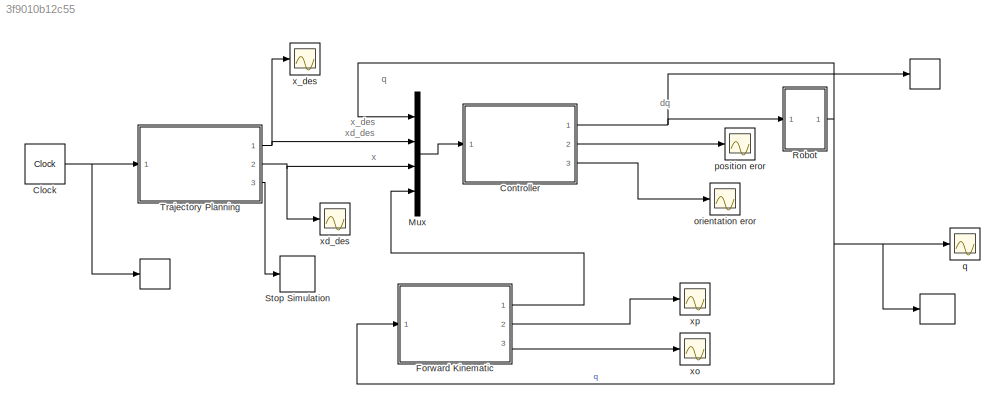
MODEL slx_3f9010b12c55
KIND model
BLOCK [ToWorkspace]  
  FixptAsFi = on
  MaxDataPoints = inf
  Ports = [1]
  SampleTime = -1
  Save2DSignal = 3-D array (concatenate along third dimension)
  VariableName = t
BLOCK [ToWorkspace]   
  FixptAsFi = on
  MaxDataPoints = inf
  Ports = [1]
  SampleTime = -1
  Save2DSignal = 3-D array (concatenate along third dimension)
  VariableName = dq
BLOCK [Clock] Clock
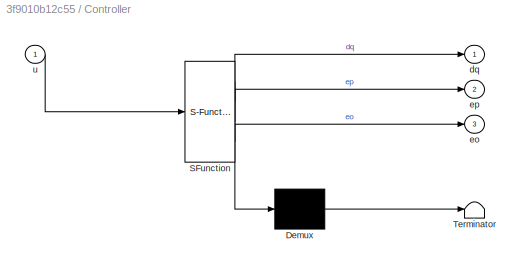
BLOCK [SubSystem] Controller
  ErrorFcn = Stateflow.Translate.translate
  PermitHierarchicalResolution = ExplicitOnly
  Ports = [1, 3]
  RequestExecContextInheritance = off
  SFBlockType = MATLAB Function
  TreatAsAtomicUnit = on
BLOCK [Demux] Controller/ Demux 
  Outputs = 1
  Ports = [1, 1]
BLOCK [S-Function] Controller/ SFunction 
  EnableBusSupport = on
  FunctionName = sf_sfun
  PortCounts = [1 4]
  Ports = [1, 4]
  Tag = Stateflow S-Function simlwrkuka_kinematics 1
BLOCK [Terminator] Controller/ Terminator 
BLOCK [Outport] Controller/dq
  IconDisplay = Port number
BLOCK [Outport] Controller/eo
  IconDisplay = Port number
  Port = 3
BLOCK [Outport] Controller/ep
  IconDisplay = Port number
  Port = 2
BLOCK [Inport] Controller/u
  IconDisplay = Port number
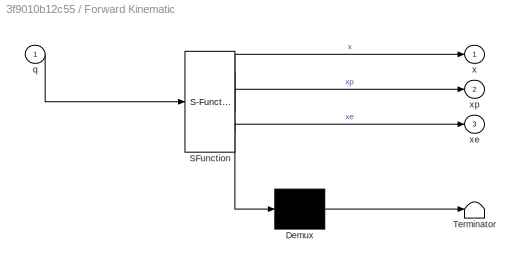
BLOCK [SubSystem] Forward Kinematic
  ErrorFcn = Stateflow.Translate.translate
  PermitHierarchicalResolution = ExplicitOnly
  Ports = [1, 3]
  RequestExecContextInheritance = off
  SFBlockType = MATLAB Function
  TreatAsAtomicUnit = on
BLOCK [Demux] Forward Kinematic/ Demux 
  Outputs = 1
  Ports = [1, 1]
BLOCK [S-Function] Forward Kinematic/ SFunction 
  EnableBusSupport = on
  FunctionName = sf_sfun
  PortCounts = [1 4]
  Ports = [1, 4]
  Tag = Stateflow S-Function simlwrkuka_kinematics 3
BLOCK [Terminator] Forward Kinematic/ Terminator 
BLOCK [Inport] Forward Kinematic/q
  IconDisplay = Port number
BLOCK [Outport] Forward Kinematic/x
  IconDisplay = Port number
BLOCK [Outport] Forward Kinematic/xe
  IconDisplay = Port number
  Port = 3
BLOCK [Outport] Forward Kinematic/xp
  IconDisplay = Port number
  Port = 2
BLOCK [Mux] Mux
  DisplayOption = bar
  Ports = [4, 1]
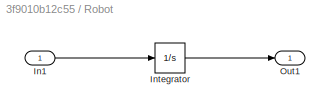
BLOCK [SubSystem] Robot
  Ports = [1, 1]
  RequestExecContextInheritance = off
BLOCK [Inport] Robot/In1
  IconDisplay = Port number
BLOCK [Integrator] Robot/Integrator
  InitialCondition = qi
  Ports = [1, 1]
BLOCK [Outport] Robot/Out1
  IconDisplay = Port number
BLOCK [Stop] Stop Simulation
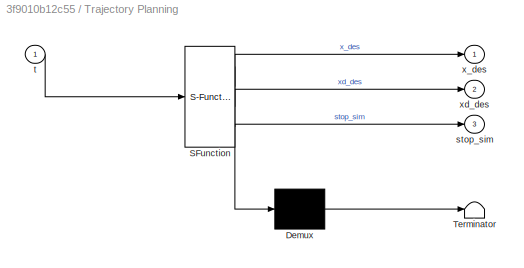
BLOCK [SubSystem] Trajectory Planning
  ErrorFcn = Stateflow.Translate.translate
  PermitHierarchicalResolution = ExplicitOnly
  Ports = [1, 3]
  RequestExecContextInheritance = off
  SFBlockType = MATLAB Function
  TreatAsAtomicUnit = on
BLOCK [Demux] Trajectory Planning/ Demux 
  Outputs = 1
  Ports = [1, 1]
BLOCK [S-Function] Trajectory Planning/ SFunction 
  EnableBusSupport = on
  FunctionName = sf_sfun
  PortCounts = [1 4]
  Ports = [1, 4]
  Tag = Stateflow S-Function simlwrkuka_kinematics 2
BLOCK [Terminator] Trajectory Planning/ Terminator 
BLOCK [Outport] Trajectory Planning/stop_sim
  IconDisplay = Port number
  Port = 3
BLOCK [Inport] Trajectory Planning/t
  IconDisplay = Port number
BLOCK [Outport] Trajectory Planning/x_des
  IconDisplay = Port number
BLOCK [Outport] Trajectory Planning/xd_des
  IconDisplay = Port number
  Port = 2
BLOCK [Scope] orientation eror
  Floating = off
  LimitDataPoints = off
  NumInputPorts = 1
  Ports = [1]
  SaveName = ScopeData1
  ShowLegends = off
  ZoomMode = yonly
BLOCK [Scope] position eror
  Floating = off
  LimitDataPoints = off
  NumInputPorts = 1
  Ports = [1]
  ShowLegends = off
  ZoomMode = xonly
BLOCK [Scope] q
  Floating = off
  LimitDataPoints = off
  NumInputPorts = 1
  Ports = [1]
  SaveName = ScopeData2
  ShowLegends = off
BLOCK [Scope] x_des 
  Floating = off
  LimitDataPoints = off
  NumInputPorts = 1
  Ports = [1]
  SaveName = ScopeData5
  ShowLegends = off
  ZoomMode = yonly
BLOCK [Scope] xd_des 
  Floating = off
  LimitDataPoints = off
  NumInputPorts = 1
  Ports = [1]
  SaveName = ScopeData6
  ShowLegends = off
  ZoomMode = yonly
BLOCK [Scope] xo
  Floating = off
  LimitDataPoints = off
  NumInputPorts = 1
  Ports = [1]
  SaveName = ScopeData4
  ShowLegends = off
  ZoomMode = yonly
BLOCK [Scope] xp
  Floating = off
  NumInputPorts = 1
  Ports = [1]
  SaveName = ScopeData3
  ShowLegends = off
  ZoomMode = xonly
ANNOTATION (root): dq
ANNOTATION (root): q
ANNOTATION (root): x
ANNOTATION (root): x_des
ANNOTATION (root): xd_des
NET Clock:1 ->  :1, Trajectory Planning:1
NET Controller:1 ->   :1, Robot:1
LINE Controller:2 -> position eror:1
LINE Controller:3 -> orientation eror:1
LINE Forward Kinematic:1 -> Mux:4
LINE Forward Kinematic:2 -> xp:1
LINE Forward Kinematic:3 -> xo:1
LINE Mux:1 -> Controller:1
LINE Robot/In1:1 -> Robot/Integrator:1
LINE Robot/Integrator:1 -> Robot/Out1:1
NET Robot:1 ->  :1, Forward Kinematic:1, Mux:1, q:1
NET Trajectory Planning:1 -> Mux:2, x_des :1
NET Trajectory Planning:2 -> Mux:3, xd_des :1
LINE Trajectory Planning:3 -> Stop Simulation:1
note: NET lines group one-source signal fan-out (src -> all destinations, sorted); 1:1 wires keep LINE
